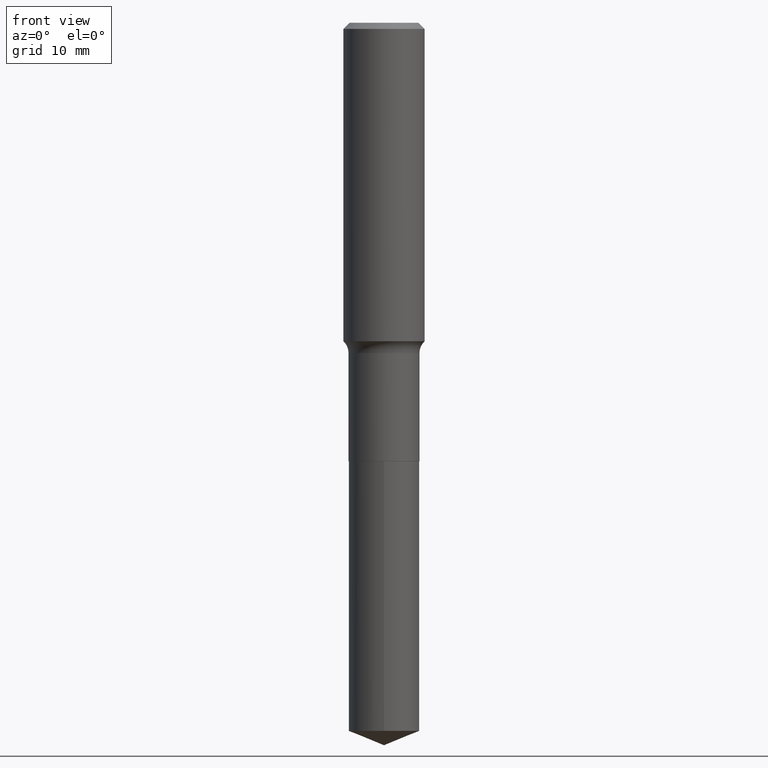
[diagram: clean part render]
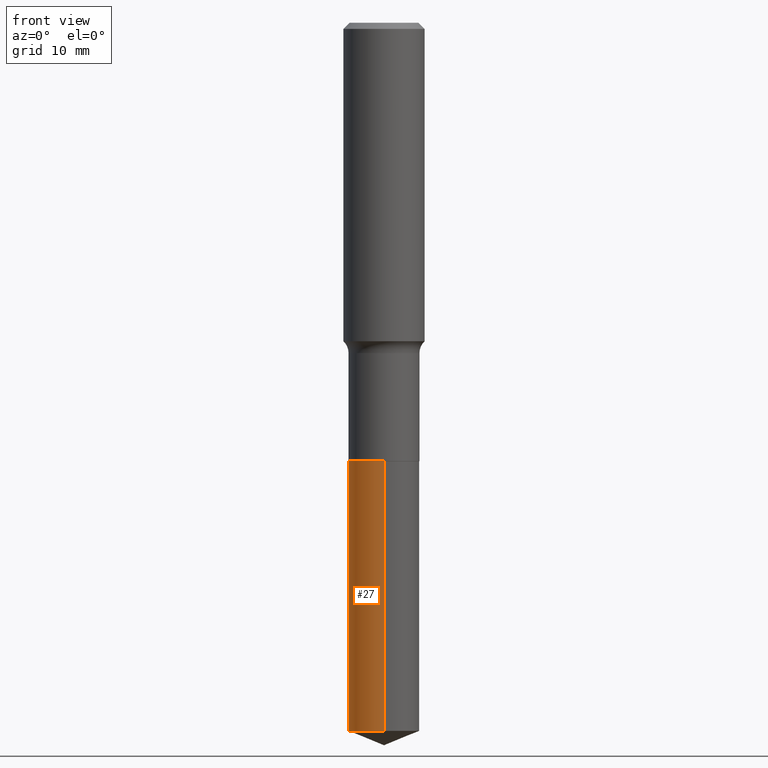
[diagram: same view with one face highlighted and labeled with its STEP entity id]
A machine part, front view. The second image highlights one B-rep face of the part: STEP entity #27.
In plain terms, the highlighted cylindrical surface (edge-blend (fillet) strip) has radius 4.3663 mm, axis along (-0, 0, 1).
Its self-contained STEP definition (entity closure, byte-faithful):
#6 = CIRCLE ( 'NONE', #281, 0.1718999999999999695 ) ;
#8 = ORIENTED_EDGE ( 'NONE', *, *, #117, .F. ) ;
#27 = ADVANCED_FACE ( 'NONE', ( #265 ), #484, .T. ) ;
#35 = DIRECTION ( 'NONE',  ( -6.982962677686266711E-15, -1.000000000000000000, 3.178415350394722068E-15 ) ) ;
#37 = VERTEX_POINT ( 'NONE', #487 ) ;
#43 = EDGE_CURVE ( 'NONE', #37, #255, #303, .T. ) ;
#46 = AXIS2_PLACEMENT_3D ( 'NONE', #60, #114, #35 ) ;
#56 = ORIENTED_EDGE ( 'NONE', *, *, #310, .T. ) ;
#60 = CARTESIAN_POINT ( 'NONE',  ( 5.198822135068982087E-29, -7.422540178246643119E-15, -2.125899999999999679 ) ) ;
#86 = DIRECTION ( 'NONE',  ( -6.982962677686266711E-15, -1.000000000000000000, 3.178415350394722068E-15 ) ) ;
#97 = CARTESIAN_POINT ( 'NONE',  ( -1.200371284294217176E-15, -0.1719000000000073802, -2.125899999999999235 ) ) ;
#114 = DIRECTION ( 'NONE',  ( -2.445510554620705079E-29, 3.491421552707238058E-15, 1.000000000000000000 ) ) ;
#117 = EDGE_CURVE ( 'NONE', #307, #284, #6, .T. ) ;
#121 = AXIS2_PLACEMENT_3D ( 'NONE', #474, #409, #86 ) ;
#123 = CARTESIAN_POINT ( 'NONE',  ( 1.221422962771696016E-15, 0.1718999999999925588, -2.125900000000000567 ) ) ;
#136 = LINE ( 'NONE', #165, #318 ) ;
#165 = CARTESIAN_POINT ( 'NONE',  ( -1.200371284294217176E-15, -0.1719000000000073802, -2.125899999999999235 ) ) ;
#167 = LINE ( 'NONE', #353, #187 ) ;
#187 = VECTOR ( 'NONE', #387, 39.37007874015748143 ) ;
#252 = DIRECTION ( 'NONE',  ( -2.445510554620705079E-29, 3.491421552707238058E-15, 1.000000000000000000 ) ) ;
#255 = VERTEX_POINT ( 'NONE', #443 ) ;
#265 = FACE_OUTER_BOUND ( 'NONE', #392, .T. ) ;
#278 = ORIENTED_EDGE ( 'NONE', *, *, #446, .F. ) ;
#281 = AXIS2_PLACEMENT_3D ( 'NONE', #475, #252, #430 ) ;
#284 = VERTEX_POINT ( 'NONE', #97 ) ;
#303 = CIRCLE ( 'NONE', #121, 0.1718999999999999695 ) ;
#307 = VERTEX_POINT ( 'NONE', #123 ) ;
#310 = EDGE_CURVE ( 'NONE', #255, #284, #136, .T. ) ;
#318 = VECTOR ( 'NONE', #423, 39.37007874015748143 ) ;
#353 = CARTESIAN_POINT ( 'NONE',  ( 1.221422962771663673E-15, 0.1718999999999925588, -2.125900000000000567 ) ) ;
#359 = ORIENTED_EDGE ( 'NONE', *, *, #43, .T. ) ;
#387 = DIRECTION ( 'NONE',  ( -2.445510554620705359E-29, 3.491421552707238452E-15, 1.000000000000000000 ) ) ;
#392 = EDGE_LOOP ( 'NONE', ( #278, #359, #56, #8 ) ) ;
#409 = DIRECTION ( 'NONE',  ( -2.445510554620705079E-29, 3.491421552707238058E-15, 1.000000000000000000 ) ) ;
#423 = DIRECTION ( 'NONE',  ( -2.445510554620705359E-29, 3.491421552707238452E-15, 1.000000000000000000 ) ) ;
#430 = DIRECTION ( 'NONE',  ( -6.982962677686266711E-15, -1.000000000000000000, 3.178415350394722068E-15 ) ) ;
#443 = CARTESIAN_POINT ( 'NONE',  ( -1.200371284294185030E-15, -0.1719000000000119599, -3.434447891778936501 ) ) ;
#446 = EDGE_CURVE ( 'NONE', #37, #307, #167, .T. ) ;
#474 = CARTESIAN_POINT ( 'NONE',  ( 8.398889815641044557E-29, -1.199123249035324259E-14, -3.434447891778936945 ) ) ;
#475 = CARTESIAN_POINT ( 'NONE',  ( 5.198822135068982087E-29, -7.422540178246643119E-15, -2.125899999999999679 ) ) ;
#484 = CYLINDRICAL_SURFACE ( 'NONE', #46, 0.1718999999999999695 ) ;
#487 = CARTESIAN_POINT ( 'NONE',  ( 1.221422962771695819E-15, 0.1718999999999880068, -3.434447891778937390 ) ) ;